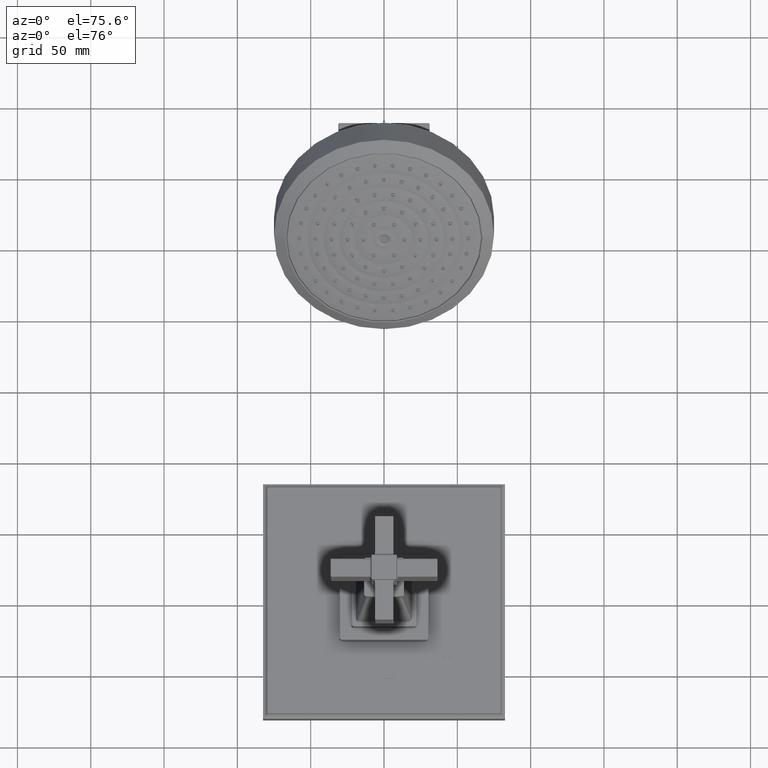
[diagram: clean part render]
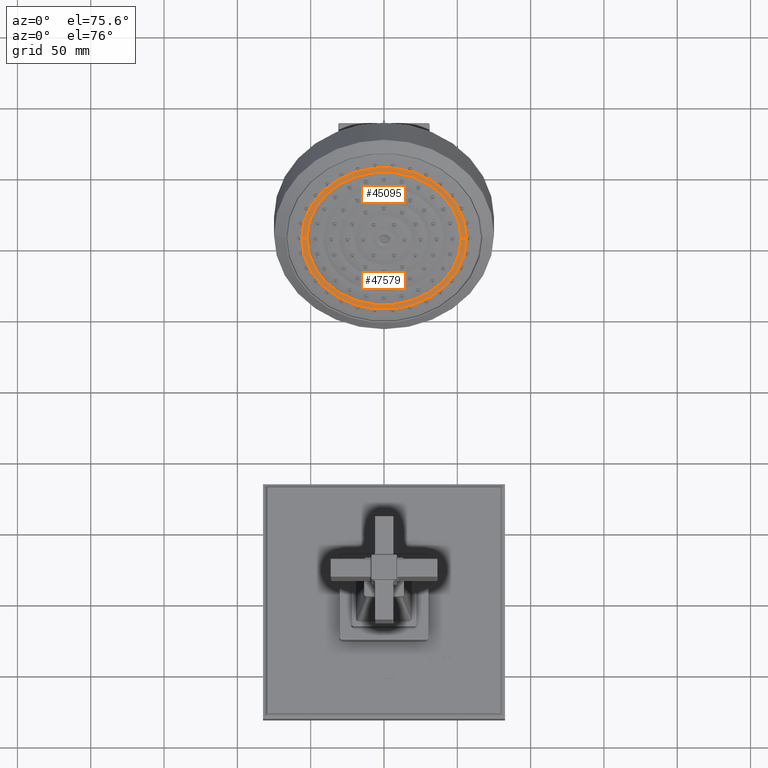
[diagram: same view with one multi-face feature highlighted, each face labeled with its STEP entity id]
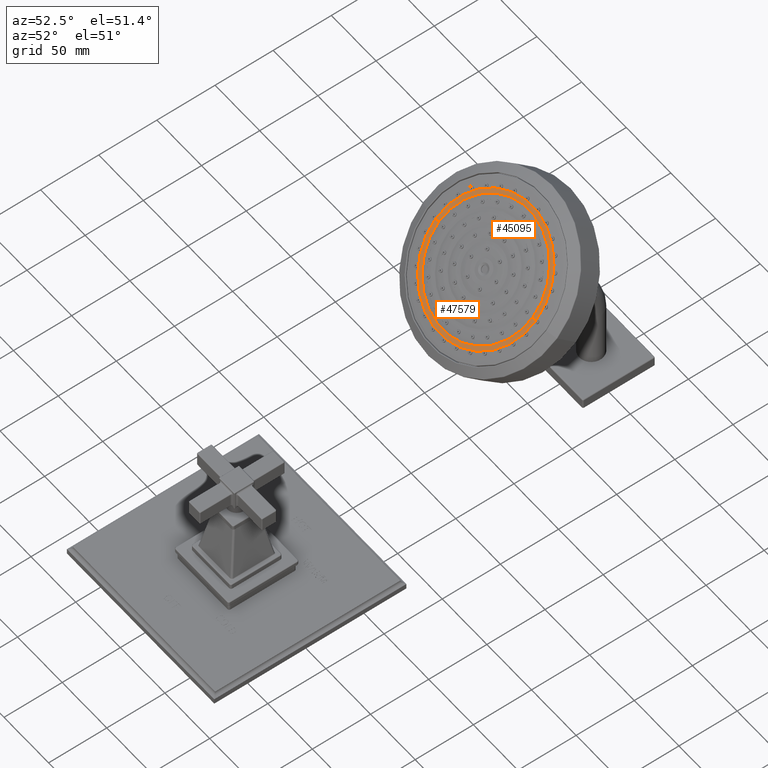
[diagram: same view with one multi-face feature highlighted, each face labeled with its STEP entity id]
A machine part, auxiliary view. The highlighted faces form ONE feature: a constant-radius fillet chain: 2 tangent blend faces with common blend radius 25.4 mm. The faces share edges in the B-rep.
A second angle (auxiliary view) of the same feature is appended — it is thin or edge-on in the first view.
Their STEP definitions:
[1] entity #47579 (Torus):
#27183=CARTESIAN_POINT('',(0.E0,8.432069296984E0,6.542804437169E0));
#27184=DIRECTION('',(0.E0,7.071067811865E-1,-7.071067811865E-1));
#27185=DIRECTION('',(1.E0,0.E0,0.E0));
#27186=AXIS2_PLACEMENT_3D('',#27183,#27184,#27185);
#27203=CARTESIAN_POINT('',(-2.120265881921E0,9.138322336601E0,
5.836551397552E0));
#27204=DIRECTION('',(-3.274117088559E-14,7.071067811865E-1,7.071067811865E-1));
#27205=DIRECTION('',(-9.061380205716E-2,-7.041978198194E-1,7.041978198194E-1));
#27206=AXIS2_PLACEMENT_3D('',#27203,#27204,#27205);
#27933=CARTESIAN_POINT('',(0.E0,8.434124516782E0,6.540749217371E0));
#27934=DIRECTION('',(0.E0,7.071067811865E-1,-7.071067811865E-1));
#27935=DIRECTION('',(1.E0,0.E0,0.E0));
#27936=AXIS2_PLACEMENT_3D('',#27933,#27934,#27935);
#30557=CARTESIAN_POINT('',(2.120265881921E0,9.138322336601E0,5.836551397552E0));
#30558=DIRECTION('',(3.350705130023E-14,-7.071067811865E-1,-7.071067811865E-1));
#30559=DIRECTION('',(9.061380205716E-2,-7.041978198194E-1,7.041978198194E-1));
#30560=AXIS2_PLACEMENT_3D('',#30557,#30558,#30559);
#35430=CARTESIAN_POINT('',(-2.071140653547E0,8.432069296984E0,
6.542804437169E0));
#35431=CARTESIAN_POINT('',(2.071140653547E0,8.432069296984E0,6.542804437169E0));
#35432=VERTEX_POINT('',#35430);
#35433=VERTEX_POINT('',#35431);
#36642=CARTESIAN_POINT('',(-2.210879683978E0,8.434124516782E0,
6.540749217371E0));
#36643=CARTESIAN_POINT('',(2.210879683978E0,8.434124516782E0,6.540749217371E0));
#36644=VERTEX_POINT('',#36642);
#36645=VERTEX_POINT('',#36643);
#47568=CARTESIAN_POINT('',(0.E0,9.138322336601E0,5.836551397552E0));
#47569=DIRECTION('',(0.E0,7.071067811865E-1,-7.071067811865E-1));
#47570=DIRECTION('',(9.999845791391E-1,3.926925260750E-3,3.926925260750E-3));
#47571=AXIS2_PLACEMENT_3D('',#47568,#47569,#47570);
#47572=TOROIDAL_SURFACE('',#47571,2.120265881921E0,1.E0);
#47573=ORIENTED_EDGE('',*,*,#45245,.T.);
#47574=ORIENTED_EDGE('',*,*,#45091,.T.);
#47575=ORIENTED_EDGE('',*,*,#45061,.F.);
#47576=ORIENTED_EDGE('',*,*,#45088,.F.);
#47577=EDGE_LOOP('',(#47573,#47574,#47575,#47576));
#47578=FACE_OUTER_BOUND('',#47577,.F.);
#47579=ADVANCED_FACE('',(#47578),#47572,.T.);
#27187=CIRCLE('',#27186,2.071140653547E0);
#27207=CIRCLE('',#27206,1.E0);
#27937=CIRCLE('',#27936,2.210879683978E0);
#30561=CIRCLE('',#30560,1.E0);
#45061=EDGE_CURVE('',#35433,#35432,#27187,.T.);
#45088=EDGE_CURVE('',#36645,#35433,#30561,.T.);
#45091=EDGE_CURVE('',#36644,#35432,#27207,.T.);
#45245=EDGE_CURVE('',#36645,#36644,#27937,.T.);
[2] entity #45095 (Torus):
#27198=CARTESIAN_POINT('',(0.E0,8.432069296984E0,6.542804437169E0));
#27199=DIRECTION('',(0.E0,7.071067811865E-1,-7.071067811865E-1));
#27200=DIRECTION('',(-1.E0,0.E0,0.E0));
#27201=AXIS2_PLACEMENT_3D('',#27198,#27199,#27200);
#27203=CARTESIAN_POINT('',(-2.120265881921E0,9.138322336601E0,
5.836551397552E0));
#27204=DIRECTION('',(-3.274117088559E-14,7.071067811865E-1,7.071067811865E-1));
#27205=DIRECTION('',(-9.061380205716E-2,-7.041978198194E-1,7.041978198194E-1));
#27206=AXIS2_PLACEMENT_3D('',#27203,#27204,#27205);
#27234=CARTESIAN_POINT('',(0.E0,8.434124516782E0,6.540749217371E0));
#27235=DIRECTION('',(0.E0,7.071067811865E-1,-7.071067811865E-1));
#27236=DIRECTION('',(-1.E0,0.E0,0.E0));
#27237=AXIS2_PLACEMENT_3D('',#27234,#27235,#27236);
#30557=CARTESIAN_POINT('',(2.120265881921E0,9.138322336601E0,5.836551397552E0));
#30558=DIRECTION('',(3.350705130023E-14,-7.071067811865E-1,-7.071067811865E-1));
#30559=DIRECTION('',(9.061380205716E-2,-7.041978198194E-1,7.041978198194E-1));
#30560=AXIS2_PLACEMENT_3D('',#30557,#30558,#30559);
#35430=CARTESIAN_POINT('',(-2.071140653547E0,8.432069296984E0,
6.542804437169E0));
#35431=CARTESIAN_POINT('',(2.071140653547E0,8.432069296984E0,6.542804437169E0));
#35432=VERTEX_POINT('',#35430);
#35433=VERTEX_POINT('',#35431);
#36642=CARTESIAN_POINT('',(-2.210879683978E0,8.434124516782E0,
6.540749217371E0));
#36643=CARTESIAN_POINT('',(2.210879683978E0,8.434124516782E0,6.540749217371E0));
#36644=VERTEX_POINT('',#36642);
#36645=VERTEX_POINT('',#36643);
#45081=CARTESIAN_POINT('',(0.E0,9.138322336601E0,5.836551397552E0));
#45082=DIRECTION('',(0.E0,7.071067811865E-1,-7.071067811865E-1));
#45083=DIRECTION('',(-9.999845791391E-1,-3.926925260750E-3,-3.926925260750E-3));
#45084=AXIS2_PLACEMENT_3D('',#45081,#45082,#45083);
#45085=TOROIDAL_SURFACE('',#45084,2.120265881921E0,1.E0);
#45087=ORIENTED_EDGE('',*,*,#45086,.T.);
#45089=ORIENTED_EDGE('',*,*,#45088,.T.);
#45090=ORIENTED_EDGE('',*,*,#45075,.F.);
#45092=ORIENTED_EDGE('',*,*,#45091,.F.);
#45093=EDGE_LOOP('',(#45087,#45089,#45090,#45092));
#45094=FACE_OUTER_BOUND('',#45093,.F.);
#45095=ADVANCED_FACE('',(#45094),#45085,.T.);
#27202=CIRCLE('',#27201,2.071140653547E0);
#27207=CIRCLE('',#27206,1.E0);
#27238=CIRCLE('',#27237,2.210879683978E0);
#30561=CIRCLE('',#30560,1.E0);
#45075=EDGE_CURVE('',#35432,#35433,#27202,.T.);
#45086=EDGE_CURVE('',#36644,#36645,#27238,.T.);
#45088=EDGE_CURVE('',#36645,#35433,#30561,.T.);
#45091=EDGE_CURVE('',#36644,#35432,#27207,.T.);